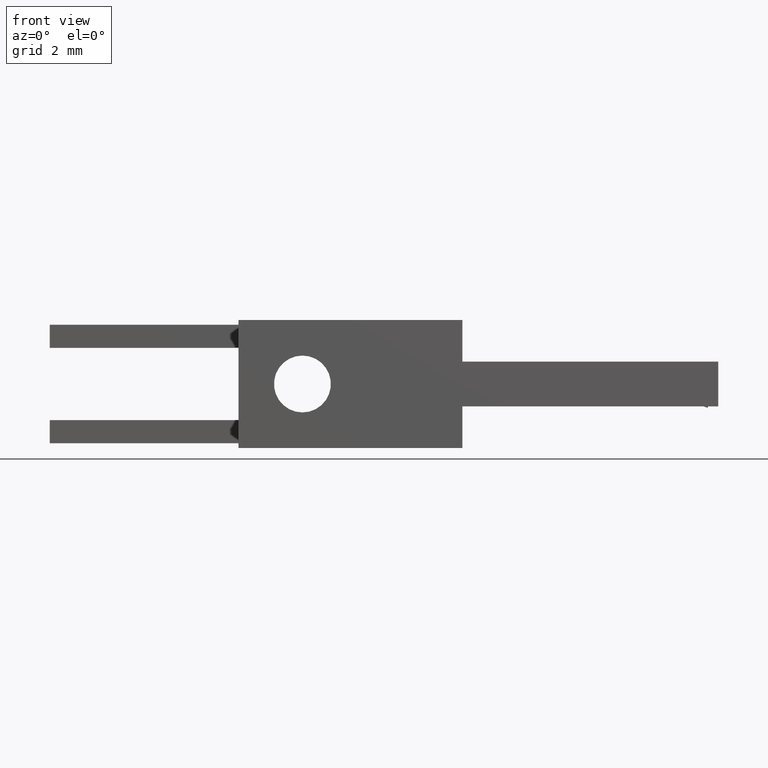
[diagram: clean part render]
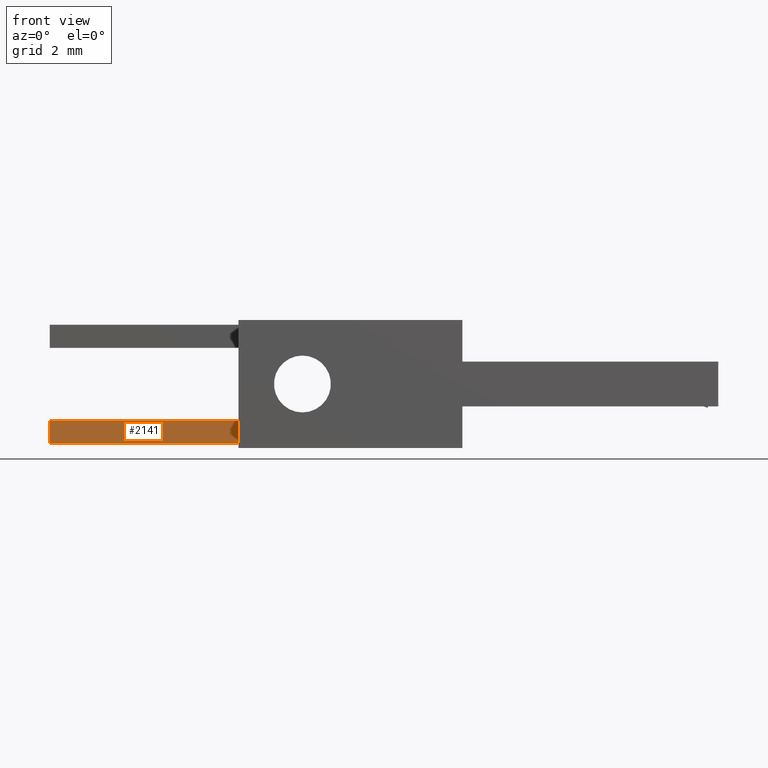
[diagram: same view with one face highlighted and labeled with its STEP entity id]
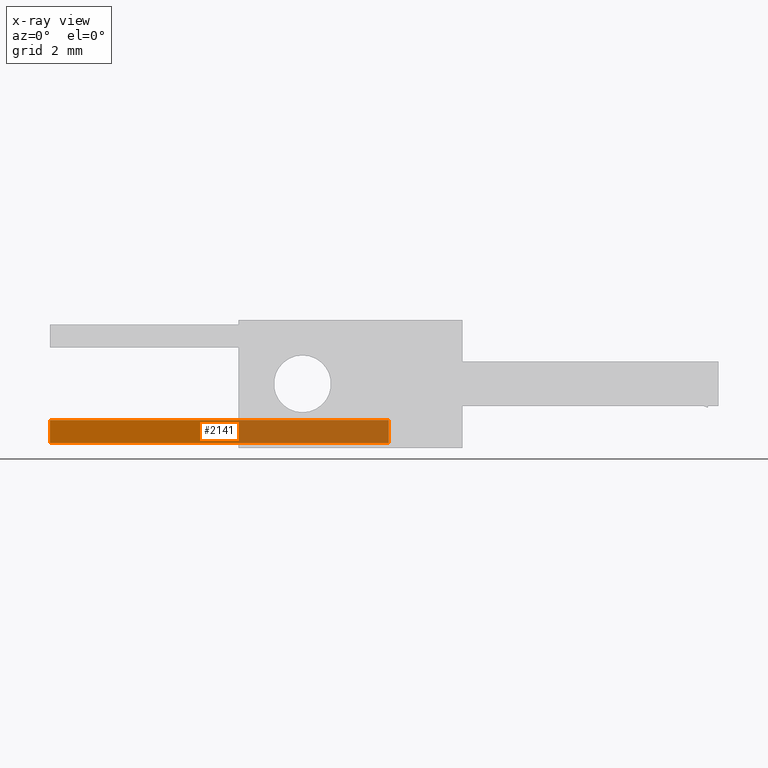
[diagram: x-ray of the same camera — body ghosted, the highlighted face saturated]
A machine part, front view. The second image highlights one B-rep face of the part: STEP entity #2141.
The next image is the same camera in x-ray: the body ghosted, the highlighted face saturated — about 44% of this face is hidden behind the body in this view.
In plain terms, the highlighted planar face has unit normal (0, -1, 0).
Its self-contained STEP definition (entity closure, byte-faithful):
#1421 = CARTESIAN_POINT ( 'NONE',  ( -3.469446951953614200E-015, 0.7238999999999986600, 0.1016000000000003000 ) ) ;
#1422 = DIRECTION ( 'NONE',  ( -4.670725435700507200E-017, -1.000000000000000000, -7.444398091725590700E-046 ) ) ;
#1423 = VECTOR ( 'NONE', #1422, 1000.000000000000000 ) ;
#1424 = CARTESIAN_POINT ( 'NONE',  ( -3.469446951953614200E-015, 0.7238999999999986600, 0.1016000000000003000 ) ) ;
#1425 = LINE ( 'NONE', #1424, #1423 ) ;
#1430 = CARTESIAN_POINT ( 'NONE',  ( 0.0000000000000000000, 0.0000000000000000000, 0.1016000000000003000 ) ) ;
#1434 = DIRECTION ( 'NONE',  ( -1.000000000000000000, -1.227398685832646600E-016, 0.0000000000000000000 ) ) ;
#1435 = VECTOR ( 'NONE', #1434, 1000.000000000000000 ) ;
#1436 = CARTESIAN_POINT ( 'NONE',  ( 10.59999999999999800, 0.7239000000000008800, 0.1016000000000003000 ) ) ;
#1438 = LINE ( 'NONE', #1436, #1435 ) ;
#1491 = DIRECTION ( 'NONE',  ( 1.000000000000000000, 0.0000000000000000000, 0.0000000000000000000 ) ) ;
#1492 = CARTESIAN_POINT ( 'NONE',  ( 0.0000000000000000000, 0.0000000000000000000, 0.1016000000000003000 ) ) ;
#1517 = VECTOR ( 'NONE', #1491, 1000.000000000000000 ) ;
#1518 = LINE ( 'NONE', #1492, #1517 ) ;
#1521 = CARTESIAN_POINT ( 'NONE',  ( 10.60000000000000000, 4.336808689942017700E-016, 0.1016000000000003000 ) ) ;
#1576 = DIRECTION ( 'NONE',  ( 1.000000000000000000, 0.0000000000000000000, 0.0000000000000000000 ) ) ;
#1577 = DIRECTION ( 'NONE',  ( 0.0000000000000000000, 0.0000000000000000000, 1.000000000000000000 ) ) ;
#1578 = FACE_OUTER_BOUND ( 'NONE', #2095, .T. ) ;
#1589 = CARTESIAN_POINT ( 'NONE',  ( 0.0000000000000000000, 0.0000000000000000000, 0.1016000000000003000 ) ) ;
#1590 = AXIS2_PLACEMENT_3D ( 'NONE', #1589, #1577, #1576 ) ;
#1591 = PLANE ( 'NONE',  #1590 ) ;
#1831 = CARTESIAN_POINT ( 'NONE',  ( 10.59999999999999800, 0.7239000000000008800, 0.1016000000000003000 ) ) ;
#2082 = VERTEX_POINT ( 'NONE', #1430 ) ;
#2084 = EDGE_CURVE ( 'NONE', #2085, #2082, #1425, .T. ) ;
#2085 = VERTEX_POINT ( 'NONE', #1421 ) ;
#2093 = EDGE_CURVE ( 'NONE', #2247, #2085, #1438, .T. ) ;
#2095 = EDGE_LOOP ( 'NONE', ( #2142, #2143, #2144, #2145 ) ) ;
#2117 = VERTEX_POINT ( 'NONE', #1521 ) ;
#2119 = EDGE_CURVE ( 'NONE', #2082, #2117, #1518, .T. ) ;
#2141 = ADVANCED_FACE ( 'NONE', ( #1578 ), #1591, .T. ) ;
#2142 = ORIENTED_EDGE ( 'NONE', *, *, #2084, .T. ) ;
#2143 = ORIENTED_EDGE ( 'NONE', *, *, #2119, .T. ) ;
#2144 = ORIENTED_EDGE ( 'NONE', *, *, #2168, .T. ) ;
#2145 = ORIENTED_EDGE ( 'NONE', *, *, #2093, .T. ) ;
#2168 = EDGE_CURVE ( 'NONE', #2117, #2247, #3294, .T. ) ;
#2247 = VERTEX_POINT ( 'NONE', #1831 ) ;
#3287 = DIRECTION ( 'NONE',  ( 0.0000000000000000000, 1.000000000000000000, 0.0000000000000000000 ) ) ;
#3288 = VECTOR ( 'NONE', #3287, 1000.000000000000000 ) ;
#3289 = CARTESIAN_POINT ( 'NONE',  ( 10.60000000000000000, 4.336808689942017700E-016, 0.1016000000000003000 ) ) ;
#3294 = LINE ( 'NONE', #3289, #3288 ) ;